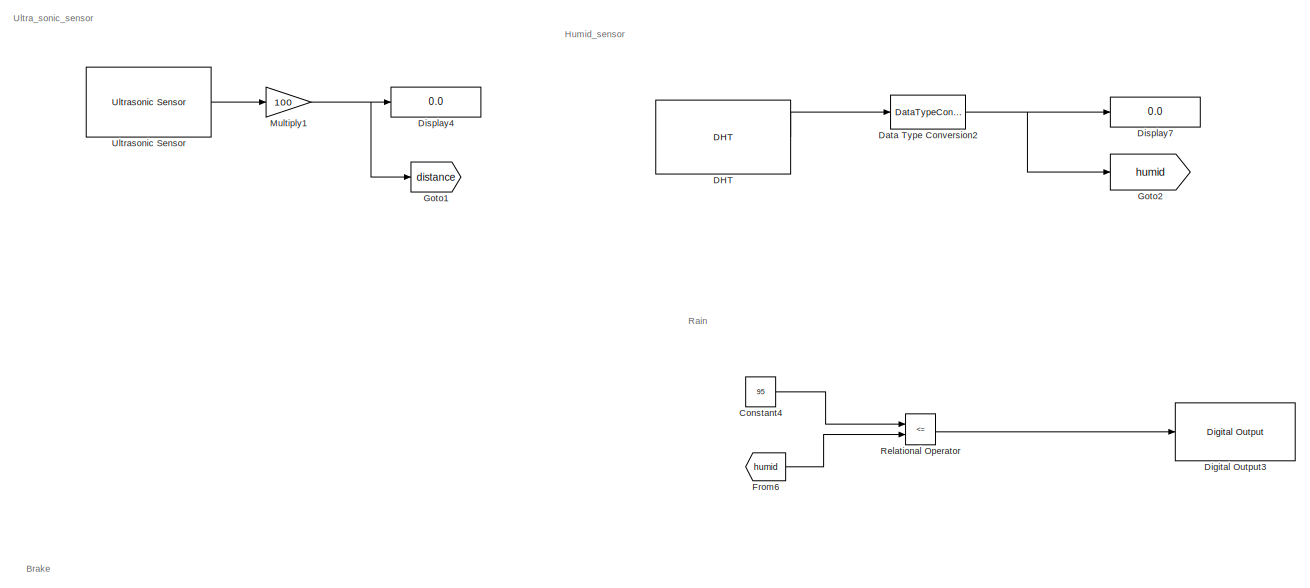
[diagram: root canvas - part 1/3, middle right region]
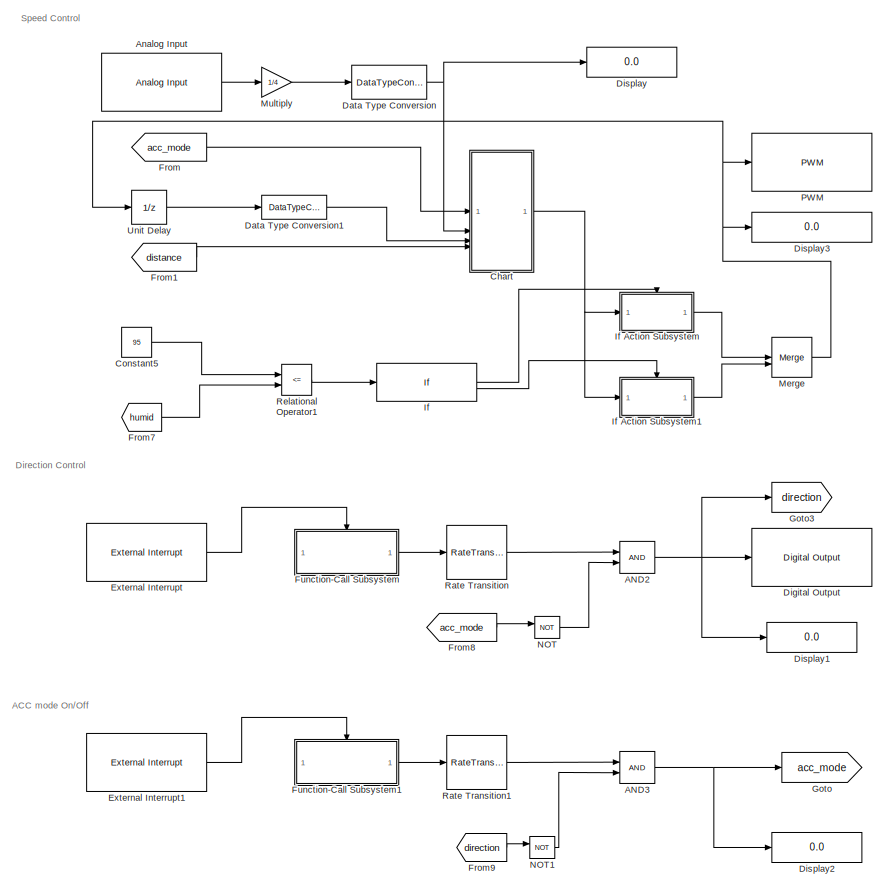
[diagram: root canvas - part 2/3, left side, full height]
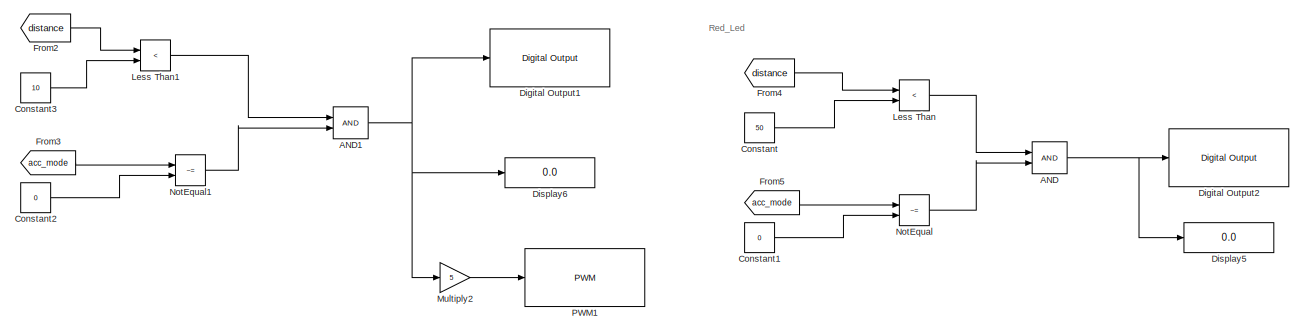
[diagram: root canvas - part 3/3, bottom right region]
MODEL slx_8ad39546c9ab
KIND model
CONFIG AbsTol = auto
CONFIG EnableMultiTasking = on
CONFIG FixedStep = auto
CONFIG MaxStep = auto
CONFIG MinStep = auto
CONFIG RelTol = 1e-3
CONFIG SampleTimeConstraint = Unconstrained
CONFIG SolverName = FixedStepAuto
CONFIG StartTime = 0.0
CONFIG StopTime = inf
BLOCK [Logic] AND
  AllPortsSameDT = off
  IconShape = distinctive
  OutDataTypeStr = boolean
BLOCK [Logic] AND1
  AllPortsSameDT = off
  IconShape = distinctive
  OutDataTypeStr = boolean
BLOCK [Logic] AND2
  AllPortsSameDT = off
  IconShape = distinctive
  OutDataTypeStr = boolean
BLOCK [Logic] AND3
  AllPortsSameDT = off
  IconShape = distinctive
  OutDataTypeStr = boolean
BLOCK [Reference] Analog Input  REF=arduinolib/Analog Input
  SourceBlock = arduinolib/Analog Input
  SourceType = Arduino Analog Input
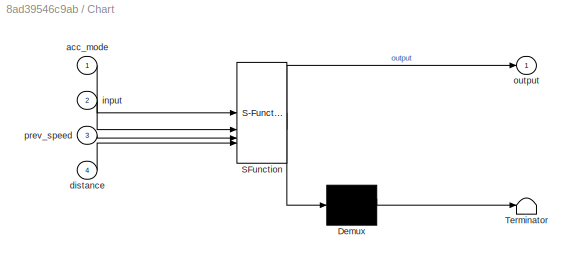
BLOCK [SubSystem] Chart
  ErrorFcn = Stateflow.Translate.translate
  PermitHierarchicalResolution = ExplicitOnly
  PortSchema = {"entries":[{"content":{"sides":[{"content":{"connectorIds":["In2","In1","In3","In4"]},"type":"ConnectorPlacement.EquallySpacedRectSide","uuid":"d0de167e-cbb5-436d-a976-1cd6a91270d1"},{"content":{"connectorIds":["Out1"],"side":"RIGHT"},"type":"ConnectorPlacement.EquallySpacedRectSide","uuid":"99f56787-17d8-459e-a573-14fd5ee0d26a"},{"content":{"connectorIds":[],"side":"TOP"},"type":"ConnectorPlacem...<+258ch>
  SFBlockType = Chart
  TreatAsAtomicUnit = on
BLOCK [Demux] Chart/ Demux 
  Outputs = 1
BLOCK [S-Function] Chart/ SFunction 
  EnableBusSupport = on
  FunctionName = sf_sfun
  PortCounts = [4 2]
  SFcnIsStateOwnerBlock = off
  SFunctionDeploymentMode = off
  Tag = Stateflow S-Function 3
BLOCK [Terminator] Chart/ Terminator 
BLOCK [Inport] Chart/acc_mode
BLOCK [Inport] Chart/distance
  Port = 4
BLOCK [Inport] Chart/input
  Port = 2
BLOCK [Outport] Chart/output
BLOCK [Inport] Chart/prev_speed
  Port = 3
BLOCK [Constant] Constant
  Value = 50
BLOCK [Constant] Constant1
  Value = 0
BLOCK [Constant] Constant2
  Value = 0
BLOCK [Constant] Constant3
  Value = 10
BLOCK [Constant] Constant4
  Value = 95
BLOCK [Constant] Constant5
  Value = 95
BLOCK [Reference] DHT  REF=Arduino_Additional_Lib/DHT
  SourceBlock = Arduino_Additional_Lib/DHT
  SourceProductName = Arduino Additional Sensors Library
  SourceType = Arduino DHT Sensor
BLOCK [DataTypeConversion] Data Type Conversion
  OutDataTypeStr = uint8
  RndMeth = Floor
  SaturateOnIntegerOverflow = off
BLOCK [DataTypeConversion] Data Type Conversion1
  OutDataTypeStr = uint8
  RndMeth = Floor
  SaturateOnIntegerOverflow = off
BLOCK [DataTypeConversion] Data Type Conversion2
  OutDataTypeStr = uint8
  RndMeth = Floor
  SaturateOnIntegerOverflow = off
BLOCK [Reference] Digital Output  REF=arduinolib/Digital Output
  SourceBlock = arduinolib/Digital Output
  SourceType = Arduino Digital Output
BLOCK [Reference] Digital Output1  REF=arduinolib/Digital Output
  SourceBlock = arduinolib/Digital Output
  SourceType = Arduino Digital Output
BLOCK [Reference] Digital Output2  REF=arduinolib/Digital Output
  SourceBlock = arduinolib/Digital Output
  SourceType = Arduino Digital Output
BLOCK [Reference] Digital Output3  REF=arduinolib/Digital Output
  SourceBlock = arduinolib/Digital Output
  SourceType = Arduino Digital Output
BLOCK [Display] Display
  Decimation = 1
BLOCK [Display] Display1
  Decimation = 1
BLOCK [Display] Display2
  Decimation = 1
BLOCK [Display] Display3
  Decimation = 1
BLOCK [Display] Display4
  Decimation = 1
BLOCK [Display] Display5
  Decimation = 1
BLOCK [Display] Display6
  Decimation = 1
BLOCK [Display] Display7
  Decimation = 1
BLOCK [Reference] External Interrupt  REF=arduinolib/External Interrupt
  SourceBlock = arduinolib/External Interrupt
  SourceType = Arduino Interrupt Block
BLOCK [Reference] External Interrupt1  REF=arduinolib/External Interrupt
  SourceBlock = arduinolib/External Interrupt
  SourceType = Arduino Interrupt Block
BLOCK [From] From
  GotoTag = acc_mode
  TagVisibility = global
BLOCK [From] From1
  GotoTag = distance
  TagVisibility = global
BLOCK [From] From2
  GotoTag = distance
  TagVisibility = global
BLOCK [From] From3
  GotoTag = acc_mode
  TagVisibility = global
BLOCK [From] From4
  GotoTag = distance
  TagVisibility = global
BLOCK [From] From5
  GotoTag = acc_mode
  TagVisibility = global
BLOCK [From] From6
  GotoTag = humid
  TagVisibility = global
BLOCK [From] From7
  GotoTag = humid
  TagVisibility = global
BLOCK [From] From8
  GotoTag = acc_mode
  TagVisibility = global
BLOCK [From] From9
  GotoTag = direction
  TagVisibility = global
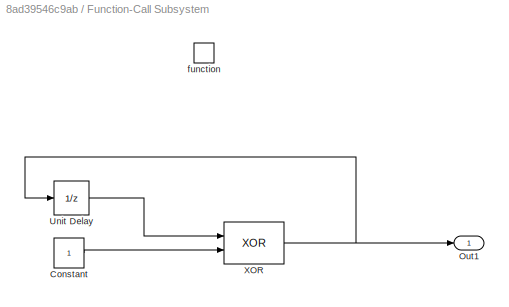
BLOCK [SubSystem] Function-Call Subsystem
  TreatAsAtomicUnit = on
BLOCK [Constant] Function-Call Subsystem/Constant
BLOCK [Outport] Function-Call Subsystem/Out1
BLOCK [UnitDelay] Function-Call Subsystem/Unit Delay
  HasFrameUpgradeWarning = on
  SampleTime = -1
BLOCK [Logic] Function-Call Subsystem/XOR
  AllPortsSameDT = off
  IconShape = distinctive
  Operator = XOR
  OutDataTypeStr = boolean
BLOCK [TriggerPort] Function-Call Subsystem/function
  StatesWhenEnabling = held
  TriggerType = function-call
  VariantControl = (inherit)
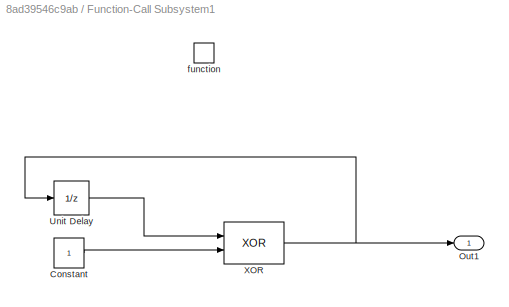
BLOCK [SubSystem] Function-Call Subsystem1
  TreatAsAtomicUnit = on
BLOCK [Constant] Function-Call Subsystem1/Constant
BLOCK [Outport] Function-Call Subsystem1/Out1
  OutDataTypeStr = boolean
BLOCK [UnitDelay] Function-Call Subsystem1/Unit Delay
  HasFrameUpgradeWarning = on
  SampleTime = -1
BLOCK [Logic] Function-Call Subsystem1/XOR
  AllPortsSameDT = off
  IconShape = distinctive
  Operator = XOR
  OutDataTypeStr = boolean
BLOCK [TriggerPort] Function-Call Subsystem1/function
  StatesWhenEnabling = held
  TriggerType = function-call
  VariantControl = (inherit)
BLOCK [Goto] Goto
  GotoTag = acc_mode
  TagVisibility = global
BLOCK [Goto] Goto1
  GotoTag = distance
  TagVisibility = global
BLOCK [Goto] Goto2
  GotoTag = humid
  TagVisibility = global
BLOCK [Goto] Goto3
  GotoTag = direction
  TagVisibility = global
BLOCK [If] If
  IfExpression = u1 == 1
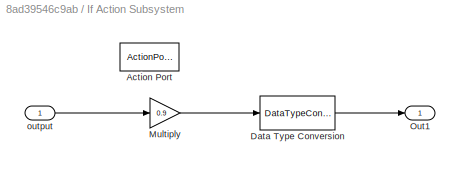
BLOCK [SubSystem] If Action Subsystem
  TreatAsAtomicUnit = on
BLOCK [ActionPort] If Action Subsystem/Action Port
  ActionPortLabel = if(u1 == 1)
BLOCK [DataTypeConversion] If Action Subsystem/Data Type Conversion
  OutDataTypeStr = uint8
  RndMeth = Floor
  SaturateOnIntegerOverflow = off
BLOCK [Gain] If Action Subsystem/Multiply
  Gain = 0.9
BLOCK [Outport] If Action Subsystem/Out1
BLOCK [Inport] If Action Subsystem/output
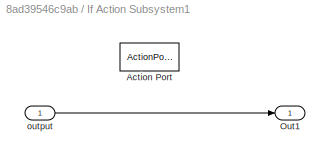
BLOCK [SubSystem] If Action Subsystem1
  TreatAsAtomicUnit = on
BLOCK [ActionPort] If Action Subsystem1/Action Port
  ActionPortLabel = else
BLOCK [Outport] If Action Subsystem1/Out1
BLOCK [Inport] If Action Subsystem1/output
BLOCK [RelationalOperator] Less Than
  InputSameDT = off
  Operator = <
  OutDataTypeStr = boolean
  RndMeth = Simplest
BLOCK [RelationalOperator] Less Than1
  InputSameDT = off
  Operator = <
  OutDataTypeStr = boolean
  RndMeth = Simplest
BLOCK [Merge] Merge
BLOCK [Gain] Multiply
  Gain = 1/4
BLOCK [Gain] Multiply1
  Gain = 100
BLOCK [Gain] Multiply2
  Gain = 5
BLOCK [Logic] NOT
  AllPortsSameDT = off
  IconShape = distinctive
  Operator = NOT
  OutDataTypeStr = boolean
BLOCK [Logic] NOT1
  AllPortsSameDT = off
  IconShape = distinctive
  Operator = NOT
  OutDataTypeStr = boolean
BLOCK [RelationalOperator] NotEqual
  InputSameDT = off
  Operator = ~=
  OutDataTypeStr = boolean
  RndMeth = Simplest
BLOCK [RelationalOperator] NotEqual1
  InputSameDT = off
  Operator = ~=
  OutDataTypeStr = boolean
  RndMeth = Simplest
BLOCK [Reference] PWM  REF=arduinolib/PWM
  SourceBlock = arduinolib/PWM
  SourceType = Arduino PWM
BLOCK [Reference] PWM1  REF=arduinolib/PWM
  SourceBlock = arduinolib/PWM
  SourceType = Arduino PWM
BLOCK [RateTransition] Rate Transition
  Deterministic = off
BLOCK [RateTransition] Rate Transition1
  Deterministic = off
BLOCK [RelationalOperator] Relational Operator
  InputSameDT = off
  Operator = <=
  OutDataTypeStr = boolean
  RndMeth = Simplest
BLOCK [RelationalOperator] Relational Operator1
  InputSameDT = off
  Operator = <=
  OutDataTypeStr = boolean
  RndMeth = Simplest
BLOCK [Reference] Ultrasonic Sensor  REF=arduinosensorlib/Ultrasonic Sensor
  SourceBlock = arduinosensorlib/Ultrasonic Sensor
  SourceType = Arduino Ultrasonic Sensor
BLOCK [UnitDelay] Unit Delay
  HasFrameUpgradeWarning = on
  SampleTime = -1
ANNOTATION (root): ACC mode On/Off
ANNOTATION (root): Brake
ANNOTATION (root): Direction Control
ANNOTATION (root): Humid_sensor
ANNOTATION (root): Rain
ANNOTATION (root): Red_Led
ANNOTATION (root): Speed Control
ANNOTATION (root): Ultra_sonic_sensor
NET AND1:1 -> Digital Output1:1, Display6:1, Multiply2:1
NET AND2:1 -> Digital Output:1, Display1:1, Goto3:1
NET AND3:1 -> Display2:1, Goto:1
NET AND:1 -> Digital Output2:1, Display5:1
LINE Analog Input:1 -> Multiply:1
NET Chart:1 -> If Action Subsystem1:1, If Action Subsystem:1
LINE Constant1:1 -> NotEqual:2
LINE Constant2:1 -> NotEqual1:2
LINE Constant3:1 -> Less Than1:2
LINE Constant4:1 -> Relational Operator:1
LINE Constant5:1 -> Relational Operator1:1
LINE Constant:1 -> Less Than:2
LINE DHT:1 -> Data Type Conversion2:1
LINE Data Type Conversion1:1 -> Chart:3
NET Data Type Conversion2:1 -> Display7:1, Goto2:1
NET Data Type Conversion:1 -> Chart:2, Display:1
LINE External Interrupt1:1 -> Function-Call Subsystem1:trigger
LINE External Interrupt:1 -> Function-Call Subsystem:trigger
LINE From1:1 -> Chart:4
LINE From2:1 -> Less Than1:1
LINE From3:1 -> NotEqual1:1
LINE From4:1 -> Less Than:1
LINE From5:1 -> NotEqual:1
LINE From6:1 -> Relational Operator:2
LINE From7:1 -> Relational Operator1:2
LINE From8:1 -> NOT:1
LINE From9:1 -> NOT1:1
LINE From:1 -> Chart:1
LINE Function-Call Subsystem/Constant:1 -> Function-Call Subsystem/XOR:2
LINE Function-Call Subsystem/Unit Delay:1 -> Function-Call Subsystem/XOR:1
NET Function-Call Subsystem/XOR:1 -> Function-Call Subsystem/Out1:1, Function-Call Subsystem/Unit Delay:1
LINE Function-Call Subsystem1/Constant:1 -> Function-Call Subsystem1/XOR:2
LINE Function-Call Subsystem1/Unit Delay:1 -> Function-Call Subsystem1/XOR:1
NET Function-Call Subsystem1/XOR:1 -> Function-Call Subsystem1/Out1:1, Function-Call Subsystem1/Unit Delay:1
LINE Function-Call Subsystem1:1 -> Rate Transition1:1
LINE Function-Call Subsystem:1 -> Rate Transition:1
LINE If Action Subsystem/Data Type Conversion:1 -> If Action Subsystem/Out1:1
LINE If Action Subsystem/Multiply:1 -> If Action Subsystem/Data Type Conversion:1
LINE If Action Subsystem/output:1 -> If Action Subsystem/Multiply:1
LINE If Action Subsystem1/output:1 -> If Action Subsystem1/Out1:1
LINE If Action Subsystem1:1 -> Merge:2
LINE If Action Subsystem:1 -> Merge:1
LINE If:1 -> If Action Subsystem:ifaction
LINE If:2 -> If Action Subsystem1:ifaction
LINE Less Than1:1 -> AND1:1
LINE Less Than:1 -> AND:1
NET Merge:1 -> Display3:1, PWM:1, Unit Delay:1
NET Multiply1:1 -> Display4:1, Goto1:1
LINE Multiply2:1 -> PWM1:1
LINE Multiply:1 -> Data Type Conversion:1
LINE NOT1:1 -> AND3:2
LINE NOT:1 -> AND2:2
LINE NotEqual1:1 -> AND1:2
LINE NotEqual:1 -> AND:2
LINE Rate Transition1:1 -> AND3:1
LINE Rate Transition:1 -> AND2:1
LINE Relational Operator1:1 -> If:1
LINE Relational Operator:1 -> Digital Output3:1
LINE Ultrasonic Sensor:1 -> Multiply1:1
LINE Unit Delay:1 -> Data Type Conversion1:1
note: NET lines group one-source signal fan-out (src -> all destinations, sorted); 1:1 wires keep LINE
CHART Chart states=8 transitions=15
  STATE_LABEL 'acc_off\noutput = input;\nacc_speed = prev_speed'
  STATE_LABEL 'speed_control\noutput = acc_speed;\n'
  STATE_LABEL 'return\nacc_speed = 60;'
  STATE_LABEL 'follow\noutput = acc_speed * 0.9;'
  STATE_LABEL 'follow_4\noutput = 0;'
  STATE_LABEL 'follow_1\noutput = acc_speed * 0.8;'
  STATE_LABEL 'follow_2\noutput = acc_speed * 0.7;'
  STATE_LABEL 'follow_3\noutput = acc_speed * 0.6;'
CHART  states=0 transitions=0
